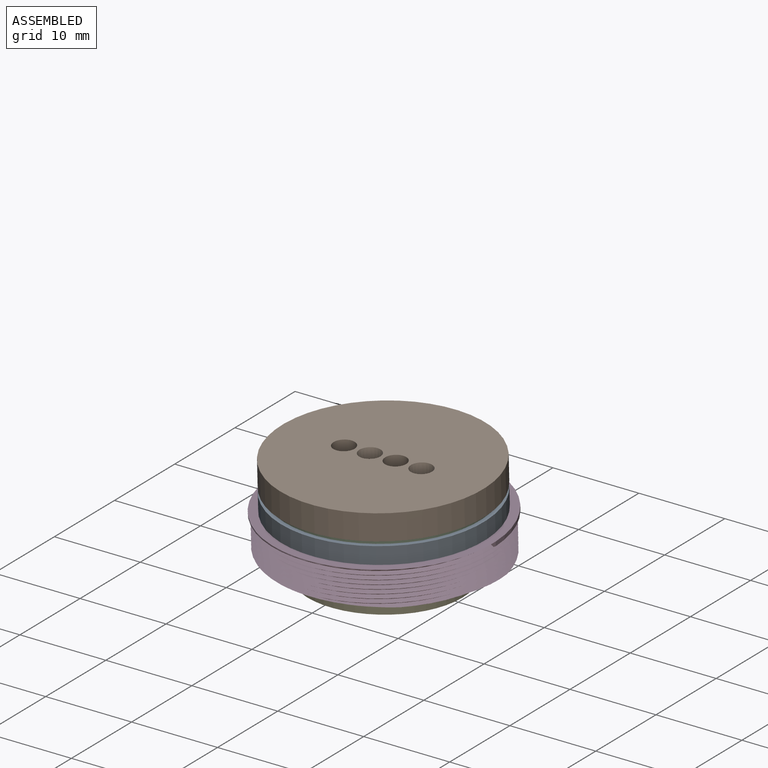
[diagram: assembled view]
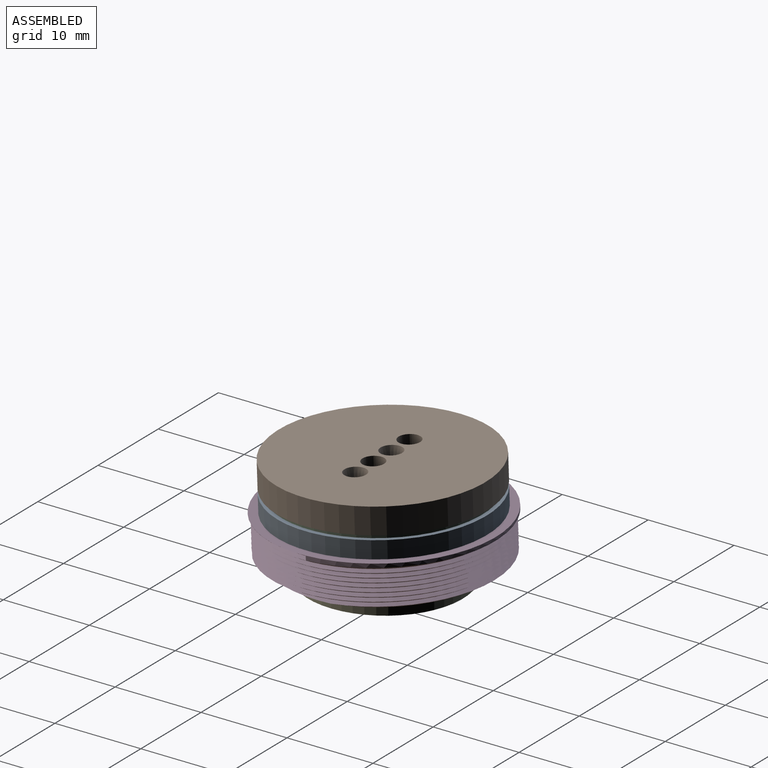
[diagram: assembled view, second angle]
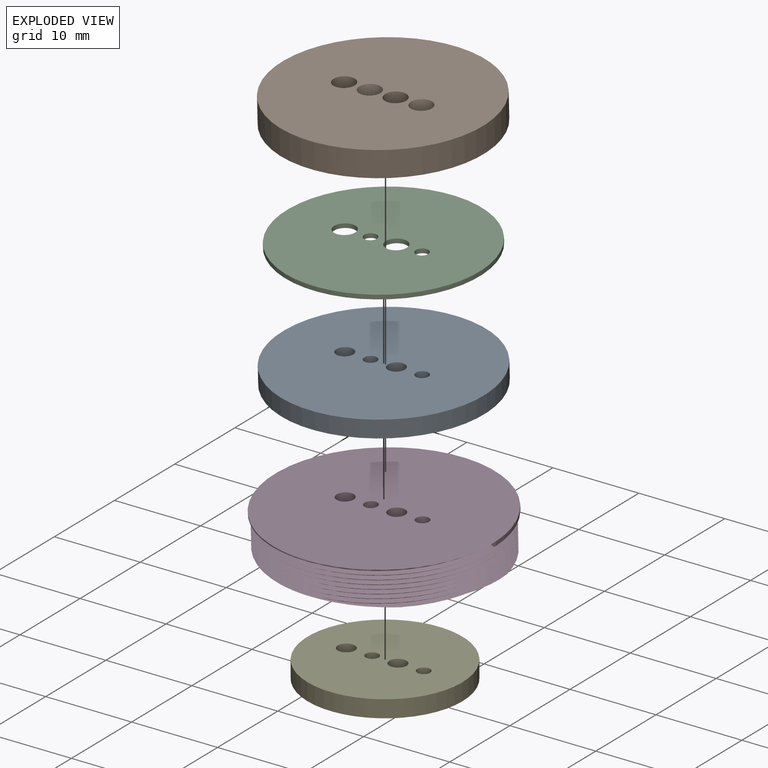
[diagram: exploded view]
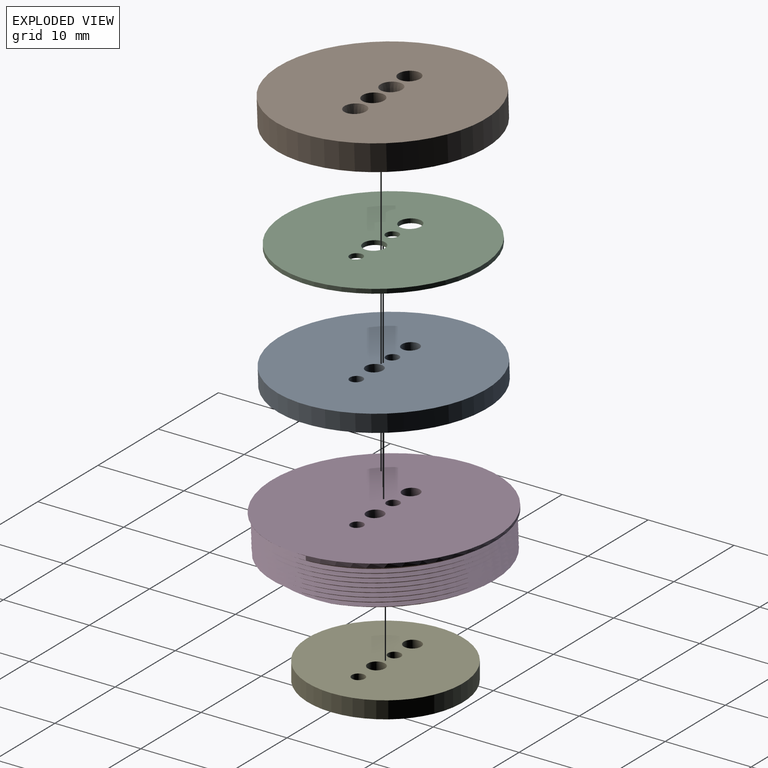
[diagram: exploded view, second angle]
ASSEMBLY  parts=5 mates=5
PART A: 7 faces, bbox 24x24x2 mm
  f0: cylinder r=12mm len=24mm, axis (0,0,-1), area 150.8mm2, adj f1,f2
  f1: plane 24x24mm, normal (0,0,1), area 442.6mm2, adj f0,f3,f4,f5,f6
  f2: plane 24x24mm, normal (0,0,-1), area 442.6mm2, adj f0,f3,f4,f5,f6
  f3: cylinder r=1mm len=2mm, axis (0,0,-1), area 12.6mm2, adj f1,f2
  f4: cylinder r=0.75mm len=2mm, axis (0,0,-1), area 9.4mm2, adj f1,f2
  f5: cylinder r=1mm len=2mm, axis (0,0,-1), area 12.6mm2, adj f1,f2
  f6: cylinder r=0.75mm len=2mm, axis (0,0,-1), area 9.4mm2, adj f1,f2
PART B: 7 faces, bbox 24x24x3 mm
  f0: cylinder r=12mm len=24mm, axis (0,0,-1), area 226.2mm2, adj f1,f2
  f1: plane 24x24mm, normal (0,0,1), area 432.8mm2, adj f0,f3,f4,f5,f6
  f2: plane 24x24mm, normal (0,0,-1), area 438.8mm2, adj f0,f3,f4,f5,f6
  f3: cylinder r=1.25mm len=3mm, axis (0,0,-1), area 23.6mm2, adj f1,f2
  f4: cylinder r=1.25mm len=3mm, axis (0,0,-1), area 23.6mm2, adj f1,f2
  f5: cone r=1.25mm half-angle=9deg, axis (0,0,1), area 19.3mm2, adj f1,f2
  f6: cone r=1.25mm half-angle=9deg, axis (0,0,1), area 19.3mm2, adj f1,f2
PART C: 7 faces, bbox 23x23x0.5 mm
  f0: cylinder r=11.5mm len=23mm, axis (0,0,-1), area 36.1mm2, adj f1,f2
  f1: plane 23x23mm, normal (0,0,1), area 402.1mm2, adj f0,f3,f4,f5,f6
  f2: plane 23x23mm, normal (0,0,-1), area 402.1mm2, adj f0,f3,f4,f5,f6
  f3: cylinder r=1.25mm len=2.5mm, axis (0,0,-1), area 3.9mm2, adj f1,f2
  f4: cylinder r=0.75mm len=1.5mm, axis (0,0,-1), area 2.4mm2, adj f1,f2
  f5: cylinder r=1.25mm len=2.5mm, axis (0,0,-1), area 3.9mm2, adj f1,f2
  f6: cylinder r=0.75mm len=1.5mm, axis (0,0,-1), area 2.4mm2, adj f1,f2
PART D: 13 faces, bbox 26.9x30.9x5.9 mm
  f0: bspline ~25.76x25.5mm, area 17.2mm2, adj f1,f11,f12
  f1: bspline ~29.44x25.5mm, area 309.8mm2, adj f0,f2,f10,f12
  f2: bspline ~29.44x25.5mm, area 317.2mm2, adj f1,f3,f10,f12
  f3: bspline ~30.02x26mm, area 23.4mm2, adj f2,f4,f10
  f4: cylinder r=13mm len=26mm, axis (0,0,-1), area 20.4mm2, adj f3,f5,f10
  f5: plane 26x26mm, normal (0,0,1), area 521.1mm2, adj f4,f6,f7,f8,f9
  f6: cylinder r=1mm len=4.58mm, axis (0,0,-1), area 28.8mm2, adj f5,f12
  f7: cylinder r=0.75mm len=4.57mm, axis (0,0,-1), area 21.5mm2, adj f5,f12
  f8: cylinder r=1mm len=4.58mm, axis (0,0,-1), area 28.8mm2, adj f5,f12
  f9: cylinder r=0.75mm len=4.57mm, axis (0,0,-1), area 21.5mm2, adj f5,f12
  f10: plane 0.68x0.64mm, normal (0,-1,0), area 0.2mm2, adj f1,f2,f3,f4
  f11: bspline ~20.88x8.8mm, area 0mm2, adj f0,f12
  f12: plane 26.07x26.02mm, normal (0,-0.03,-1), area 485.6mm2, adj f0,f1,f2,f6,f7,f8,f9,f11
PART E: 7 faces, bbox 18x18x2 mm
  f0: cylinder r=9mm len=18mm, axis (0,0,-1), area 113.1mm2, adj f1,f2
  f1: plane 18x18mm, normal (0,0,1), area 244.7mm2, adj f0,f3,f4,f5,f6
  f2: plane 18x18mm, normal (0,0,-1), area 244.7mm2, adj f0,f3,f4,f5,f6
  f3: cylinder r=1mm len=2mm, axis (0,0,-1), area 12.6mm2, adj f1,f2
  f4: cylinder r=0.75mm len=2mm, axis (0,0,-1), area 9.4mm2, adj f1,f2
  f5: cylinder r=1mm len=2mm, axis (0,0,-1), area 12.6mm2, adj f1,f2
  f6: cylinder r=0.75mm len=2mm, axis (0,0,-1), area 9.4mm2, adj f1,f2
PLACE A rot(axis=(1,0,0),2deg) t=(-5.13,0.69,-3.95)mm
PLACE B rot(axis=(1,0,0),2deg) t=(-5.13,0.61,-1.45)mm
PLACE C rot(axis=(1,0,0),2deg) t=(-5.13,0.62,-1.95)mm
PLACE D rot(axis=(1,0,0),2deg) t=(-5.13,0.87,-8.94)mm
PLACE E t=(-5.13,0.87,-10.99)mm
MATE slider B.f0 <-> C.f0  axis (0,0.03,-1) through (-5.13,0.61,-1.45)mm
MATE slider E.f0 <-> D.f12  axis (0,0,-1) through (-5.13,0.87,-8.99)mm
MATE slider A.f0 <-> D.f4  axis (0,0.03,-1) through (-5.13,0.69,-3.95)mm
MATE slider D.f12 <-> E.f0  axis (0,0,-1) through (-5.13,0.87,-8.49)mm
MATE slider C.f0 <-> A.f0  axis (0,0.03,-1) through (-5.13,0.62,-1.95)mm
